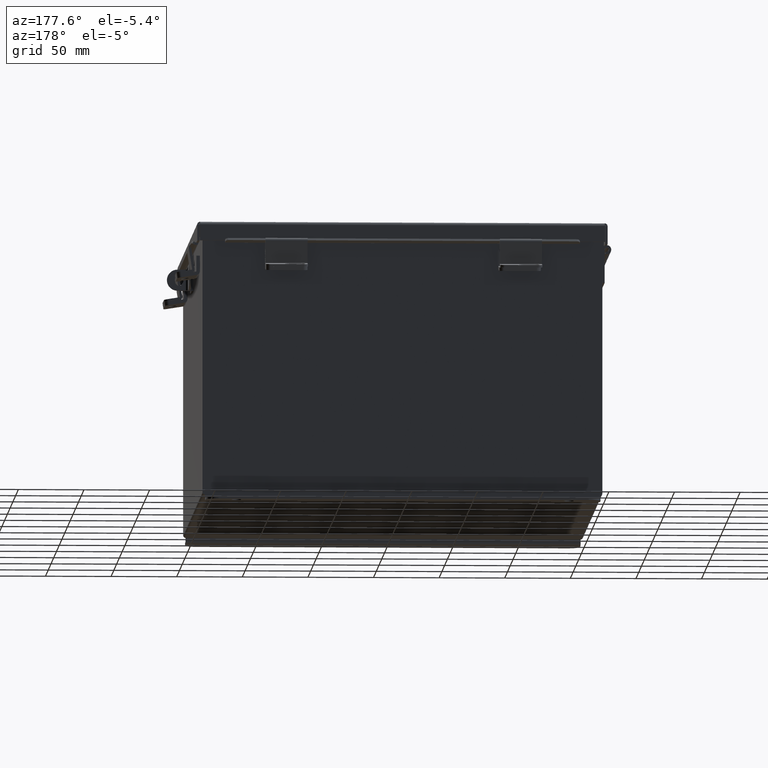
[diagram: clean part render]
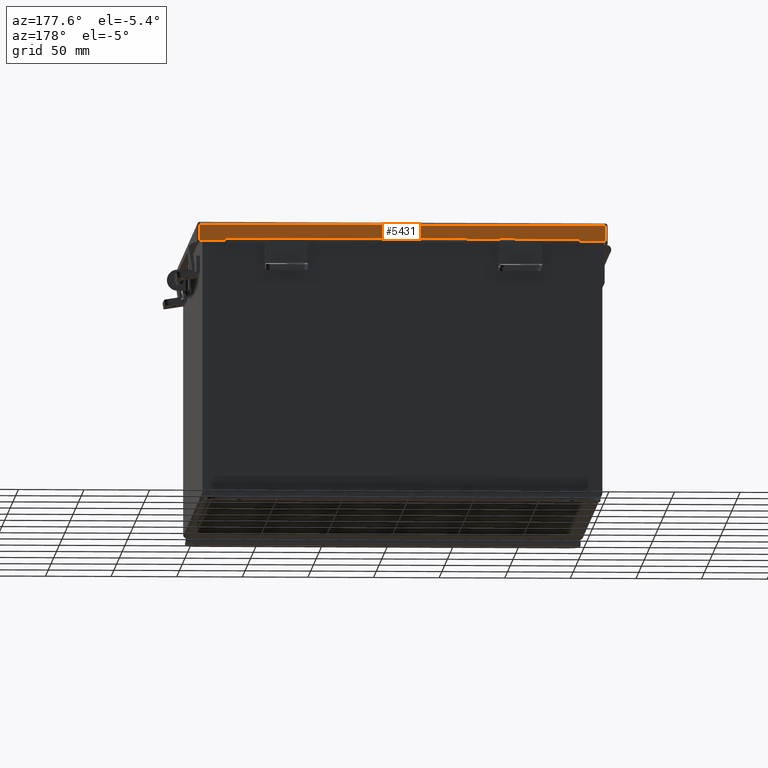
[diagram: same view with one face highlighted and labeled with its STEP entity id]
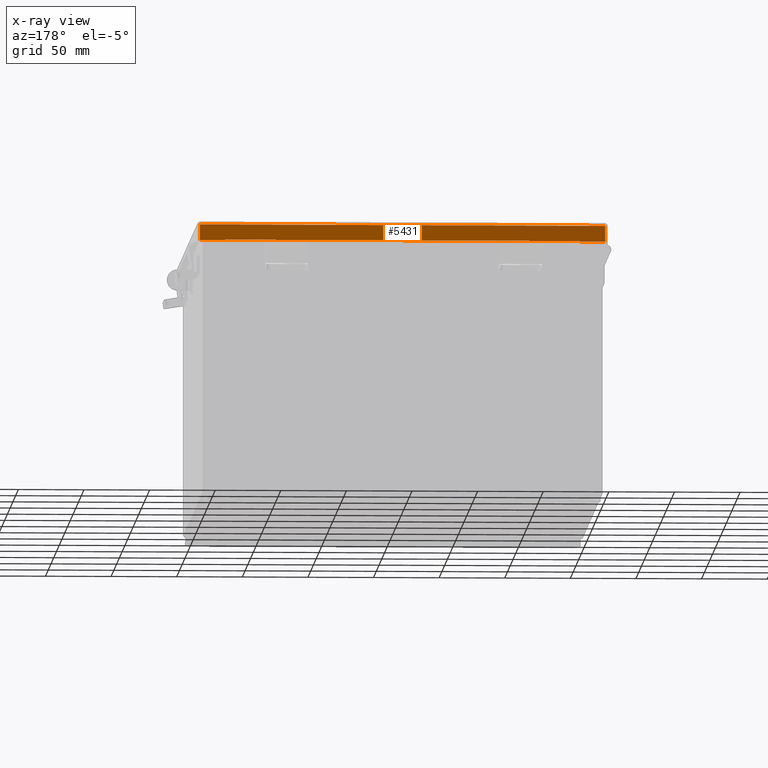
[diagram: x-ray of the same camera — body ghosted, the highlighted face saturated]
A machine part, auxiliary view. The second image highlights one B-rep face of the part: STEP entity #5431.
The next image is the same camera in x-ray: the body ghosted, the highlighted face saturated — about 0% of this face is hidden behind the body in this view.
In plain terms, the highlighted planar face has unit normal (-0, -1, -0).
Its self-contained STEP definition (entity closure, byte-faithful):
#83 = CARTESIAN_POINT ( 'NONE',  ( -2.703004116370754100E-018, 7.156250000000001800, 0.4872999999999997900 ) ) ;
#634 = LINE ( 'NONE', #9314, #8303 ) ;
#965 = CARTESIAN_POINT ( 'NONE',  ( 5.324478932188134700, 7.156250000000003600, 0.4872999999999991200 ) ) ;
#1060 = CARTESIAN_POINT ( 'NONE',  ( 6.074478932188134700, 7.156249999999999100, -3.350199796867980800E-016 ) ) ;
#1068 = CARTESIAN_POINT ( 'NONE',  ( 6.156249999999998200, 7.156249999999999100, 0.01299999999999978100 ) ) ;
#1142 = VERTEX_POINT ( 'NONE', #10287 ) ;
#1602 = EDGE_CURVE ( 'NONE', #1142, #6403, #13730, .T. ) ;
#2273 = VECTOR ( 'NONE', #18544, 39.37007874015748100 ) ;
#2418 = VECTOR ( 'NONE', #15815, 39.37007874015748100 ) ;
#2665 = VECTOR ( 'NONE', #8268, 39.37007874015748100 ) ;
#3083 = AXIS2_PLACEMENT_3D ( 'NONE', #4472, #5902, #15899 ) ;
#3108 = LINE ( 'NONE', #6824, #2665 ) ;
#3465 = EDGE_CURVE ( 'NONE', #9599, #12808, #634, .T. ) ;
#3903 = EDGE_CURVE ( 'NONE', #18134, #11688, #13864, .T. ) ;
#3925 = VECTOR ( 'NONE', #6803, 39.37007874015748100 ) ;
#4119 = CARTESIAN_POINT ( 'NONE',  ( -5.324478932188136500, 7.156250000000002700, 0.4717115427318791500 ) ) ;
#4351 = VECTOR ( 'NONE', #8455, 39.37007874015748100 ) ;
#4472 = CARTESIAN_POINT ( 'NONE',  ( 1.780270132900160200E-031, 7.156249999999999100, -3.235568286128124100E-014 ) ) ;
#4810 = LINE ( 'NONE', #4119, #4351 ) ;
#4965 = VECTOR ( 'NONE', #16735, 39.37007874015748100 ) ;
#5043 = DIRECTION ( 'NONE',  ( -1.000000000000000000, -0.0000000000000000000, -0.0000000000000000000 ) ) ;
#5431 = ADVANCED_FACE ( 'NONE', ( #10263 ), #14472, .F. ) ;
#5485 = EDGE_LOOP ( 'NONE', ( #11064, #11980, #18399, #15456, #13123, #13860, #9283, #17476 ) ) ;
#5646 = CARTESIAN_POINT ( 'NONE',  ( -6.074478932188135600, 7.156249999999999100, -3.235568286128124100E-014 ) ) ;
#5902 = DIRECTION ( 'NONE',  ( -2.487713722829918300E-032, -1.000000000000000000, 4.484872552701437000E-015 ) ) ;
#6403 = VERTEX_POINT ( 'NONE', #7425 ) ;
#6703 = DIRECTION ( 'NONE',  ( -7.009925220120870000E-014, -7.009925220120870000E-014, -1.000000000000000000 ) ) ;
#6803 = DIRECTION ( 'NONE',  ( -0.0000000000000000000, 4.484872552701437000E-015, 1.000000000000000000 ) ) ;
#6824 = CARTESIAN_POINT ( 'NONE',  ( -2.703004116370754100E-018, 7.156250000000001800, 0.4872999999999997900 ) ) ;
#7398 = VERTEX_POINT ( 'NONE', #14025 ) ;
#7425 = CARTESIAN_POINT ( 'NONE',  ( -6.074478932188137400, 7.156250000000001800, 0.4872999999999997300 ) ) ;
#7550 = VERTEX_POINT ( 'NONE', #11452 ) ;
#7629 = LINE ( 'NONE', #965, #11892 ) ;
#7794 = CARTESIAN_POINT ( 'NONE',  ( 5.324478932188134700, 7.156250000000001800, 0.4872999999999997900 ) ) ;
#8268 = DIRECTION ( 'NONE',  ( 1.000000000000000000, 0.0000000000000000000, 5.546899479521349200E-018 ) ) ;
#8303 = VECTOR ( 'NONE', #5043, 39.37007874015748100 ) ;
#8455 = DIRECTION ( 'NONE',  ( 0.0000000000000000000, 0.0000000000000000000, 1.000000000000000000 ) ) ;
#8763 = EDGE_CURVE ( 'NONE', #12808, #7550, #4810, .T. ) ;
#9283 = ORIENTED_EDGE ( 'NONE', *, *, #8763, .F. ) ;
#9314 = CARTESIAN_POINT ( 'NONE',  ( 5.324478932188134700, 7.156250000000002700, 0.4717115427318791500 ) ) ;
#9434 = CARTESIAN_POINT ( 'NONE',  ( 5.324478932188133000, 7.156250000000001800, 0.4717115427318791500 ) ) ;
#9599 = VERTEX_POINT ( 'NONE', #9434 ) ;
#10263 = FACE_OUTER_BOUND ( 'NONE', #5485, .T. ) ;
#10287 = CARTESIAN_POINT ( 'NONE',  ( -6.074478932188137400, 7.156249999999999100, 0.01299999999999978100 ) ) ;
#11030 = EDGE_CURVE ( 'NONE', #1142, #7398, #16367, .T. ) ;
#11064 = ORIENTED_EDGE ( 'NONE', *, *, #12080, .F. ) ;
#11452 = CARTESIAN_POINT ( 'NONE',  ( -5.324478932188136500, 7.156250000000001800, 0.4872999999999997900 ) ) ;
#11547 = LINE ( 'NONE', #1060, #3925 ) ;
#11688 = VERTEX_POINT ( 'NONE', #15699 ) ;
#11892 = VECTOR ( 'NONE', #6703, 39.37007874015748100 ) ;
#11964 = CARTESIAN_POINT ( 'NONE',  ( -5.324478932188136500, 7.156250000000001800, 0.4717115427318791500 ) ) ;
#11980 = ORIENTED_EDGE ( 'NONE', *, *, #3903, .T. ) ;
#12080 = EDGE_CURVE ( 'NONE', #18134, #9599, #7629, .T. ) ;
#12808 = VERTEX_POINT ( 'NONE', #11964 ) ;
#13123 = ORIENTED_EDGE ( 'NONE', *, *, #1602, .T. ) ;
#13730 = LINE ( 'NONE', #5646, #2273 ) ;
#13860 = ORIENTED_EDGE ( 'NONE', *, *, #14961, .T. ) ;
#13864 = LINE ( 'NONE', #83, #2418 ) ;
#14025 = CARTESIAN_POINT ( 'NONE',  ( 6.074478932188134700, 7.156249999999999100, 0.01299999999999977400 ) ) ;
#14472 = PLANE ( 'NONE',  #3083 ) ;
#14961 = EDGE_CURVE ( 'NONE', #6403, #7550, #3108, .T. ) ;
#15456 = ORIENTED_EDGE ( 'NONE', *, *, #11030, .F. ) ;
#15699 = CARTESIAN_POINT ( 'NONE',  ( 6.074478932188134700, 7.156250000000001800, 0.4872999999999997900 ) ) ;
#15815 = DIRECTION ( 'NONE',  ( 1.000000000000000000, 0.0000000000000000000, 5.546899479521349200E-018 ) ) ;
#15899 = DIRECTION ( 'NONE',  ( 0.0000000000000000000, -4.484872552701437000E-015, -1.000000000000000000 ) ) ;
#16367 = LINE ( 'NONE', #1068, #4965 ) ;
#16735 = DIRECTION ( 'NONE',  ( 1.000000000000000000, -2.487713722829918300E-032, 1.089533968265403200E-046 ) ) ;
#17476 = ORIENTED_EDGE ( 'NONE', *, *, #3465, .F. ) ;
#18134 = VERTEX_POINT ( 'NONE', #7794 ) ;
#18229 = EDGE_CURVE ( 'NONE', #7398, #11688, #11547, .T. ) ;
#18399 = ORIENTED_EDGE ( 'NONE', *, *, #18229, .F. ) ;
#18544 = DIRECTION ( 'NONE',  ( 0.0000000000000000000, 4.484872552701437000E-015, 1.000000000000000000 ) ) ;